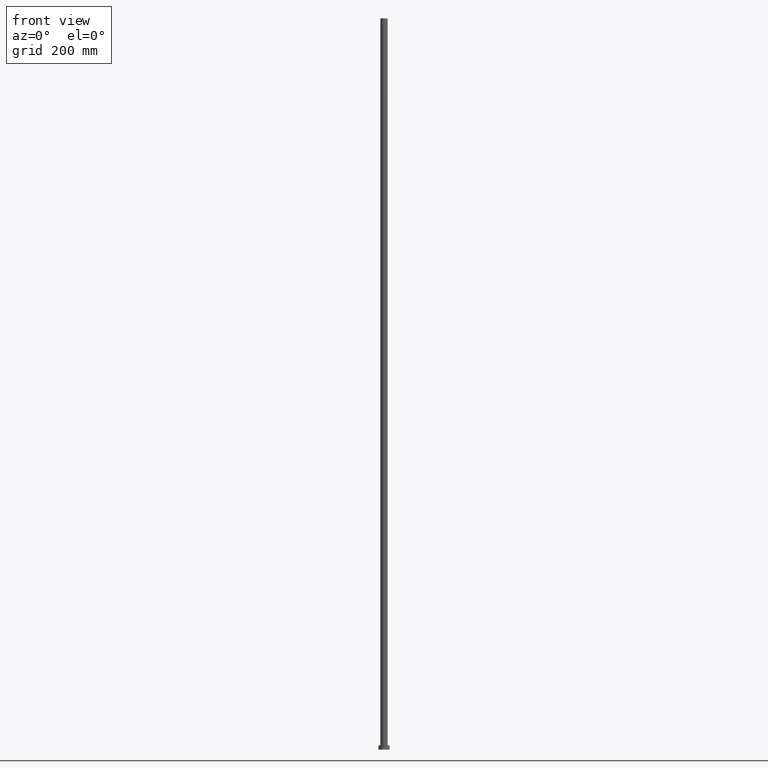
[diagram: clean part render]
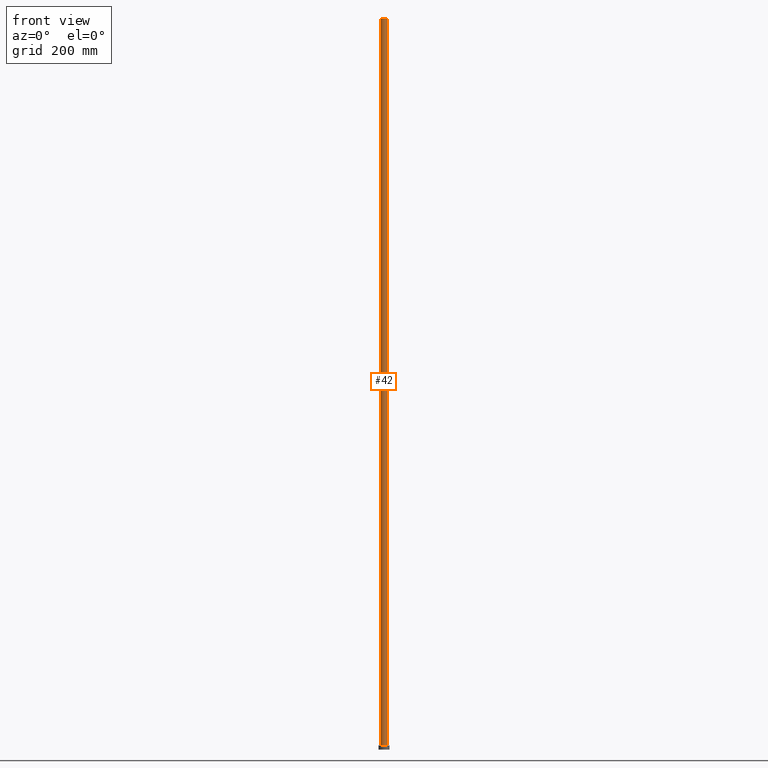
[diagram: same view with one face highlighted and labeled with its STEP entity id]
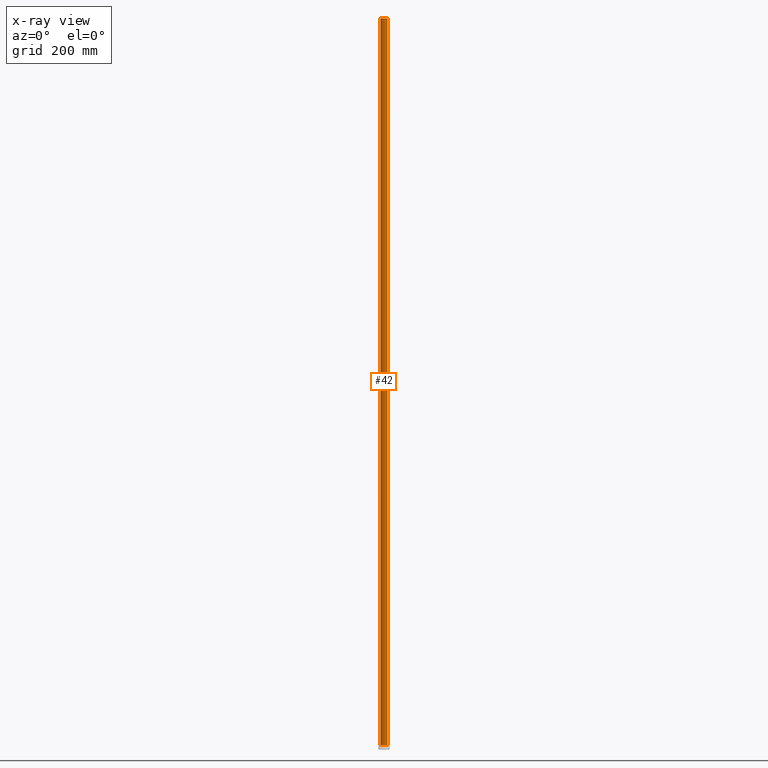
[diagram: x-ray of the same camera — body ghosted, the highlighted face saturated]
A machine part, front view. The second image highlights one B-rep face of the part: STEP entity #42.
The next image is the same camera in x-ray: the body ghosted, the highlighted face saturated — about 0% of this face is hidden behind the body in this view.
In plain terms, the highlighted cylindrical surface (edge-blend (fillet) strip) has radius 6 mm, axis along (-0, -0, -1).
Its self-contained STEP definition (entity closure, byte-faithful):
#3 = LINE ( 'NONE', #255, #222 ) ;
#14 = ORIENTED_EDGE ( 'NONE', *, *, #149, .F. ) ;
#21 = DIRECTION ( 'NONE',  ( -0.000000000000000000, -0.000000000000000000, -1.000000000000000000 ) ) ;
#22 = AXIS2_PLACEMENT_3D ( 'NONE', #170, #97, #192 ) ;
#34 = VERTEX_POINT ( 'NONE', #178 ) ;
#42 = ADVANCED_FACE ( 'NONE', ( #229 ), #129, .T. ) ;
#50 = DIRECTION ( 'NONE',  ( -1.000000000000000000, 0.000000000000000000, 0.000000000000000000 ) ) ;
#83 = VERTEX_POINT ( 'NONE', #151 ) ;
#84 = AXIS2_PLACEMENT_3D ( 'NONE', #207, #109, #50 ) ;
#92 = DIRECTION ( 'NONE',  ( 1.000000000000000000, 0.000000000000000000, 0.000000000000000000 ) ) ;
#94 = CARTESIAN_POINT ( 'NONE',  ( 6.000000000000000888, 7.347880794884120722E-16, 1200.000000000000000 ) ) ;
#95 = DIRECTION ( 'NONE',  ( -0.000000000000000000, -0.000000000000000000, -1.000000000000000000 ) ) ;
#97 = DIRECTION ( 'NONE',  ( 0.000000000000000000, 0.000000000000000000, 1.000000000000000000 ) ) ;
#101 = VECTOR ( 'NONE', #95, 1000.000000000000000 ) ;
#104 = CIRCLE ( 'NONE', #237, 6.000000000000000888 ) ;
#105 = CIRCLE ( 'NONE', #22, 6.000000000000000888 ) ;
#109 = DIRECTION ( 'NONE',  ( -0.000000000000000000, -0.000000000000000000, -1.000000000000000000 ) ) ;
#112 = CARTESIAN_POINT ( 'NONE',  ( -6.000000000000000888, 0.000000000000000000, 7.000000000000000000 ) ) ;
#117 = ORIENTED_EDGE ( 'NONE', *, *, #246, .T. ) ;
#119 = DIRECTION ( 'NONE',  ( 0.000000000000000000, 0.000000000000000000, 1.000000000000000000 ) ) ;
#129 = CYLINDRICAL_SURFACE ( 'NONE', #84, 6.000000000000000888 ) ;
#147 = EDGE_CURVE ( 'NONE', #252, #83, #104, .T. ) ;
#149 = EDGE_CURVE ( 'NONE', #83, #34, #185, .T. ) ;
#151 = CARTESIAN_POINT ( 'NONE',  ( 6.000000000000000888, 7.347880794884120722E-16, 1200.000000000000000 ) ) ;
#157 = ORIENTED_EDGE ( 'NONE', *, *, #232, .T. ) ;
#165 = EDGE_LOOP ( 'NONE', ( #14, #234, #117, #157 ) ) ;
#170 = CARTESIAN_POINT ( 'NONE',  ( 0.000000000000000000, 0.000000000000000000, 7.000000000000000000 ) ) ;
#178 = CARTESIAN_POINT ( 'NONE',  ( 6.000000000000000888, 7.347880794884120722E-16, 7.000000000000000000 ) ) ;
#185 = LINE ( 'NONE', #94, #101 ) ;
#192 = DIRECTION ( 'NONE',  ( 1.000000000000000000, 0.000000000000000000, 0.000000000000000000 ) ) ;
#202 = VERTEX_POINT ( 'NONE', #112 ) ;
#207 = CARTESIAN_POINT ( 'NONE',  ( 0.000000000000000000, 0.000000000000000000, 1200.000000000000000 ) ) ;
#214 = CARTESIAN_POINT ( 'NONE',  ( 0.000000000000000000, 0.000000000000000000, 1200.000000000000000 ) ) ;
#217 = CARTESIAN_POINT ( 'NONE',  ( -6.000000000000000888, 0.000000000000000000, 1200.000000000000000 ) ) ;
#222 = VECTOR ( 'NONE', #21, 1000.000000000000000 ) ;
#229 = FACE_OUTER_BOUND ( 'NONE', #165, .T. ) ;
#232 = EDGE_CURVE ( 'NONE', #202, #34, #105, .T. ) ;
#234 = ORIENTED_EDGE ( 'NONE', *, *, #147, .F. ) ;
#237 = AXIS2_PLACEMENT_3D ( 'NONE', #214, #119, #92 ) ;
#246 = EDGE_CURVE ( 'NONE', #252, #202, #3, .T. ) ;
#252 = VERTEX_POINT ( 'NONE', #217 ) ;
#255 = CARTESIAN_POINT ( 'NONE',  ( -6.000000000000000888, 0.000000000000000000, 1200.000000000000000 ) ) ;